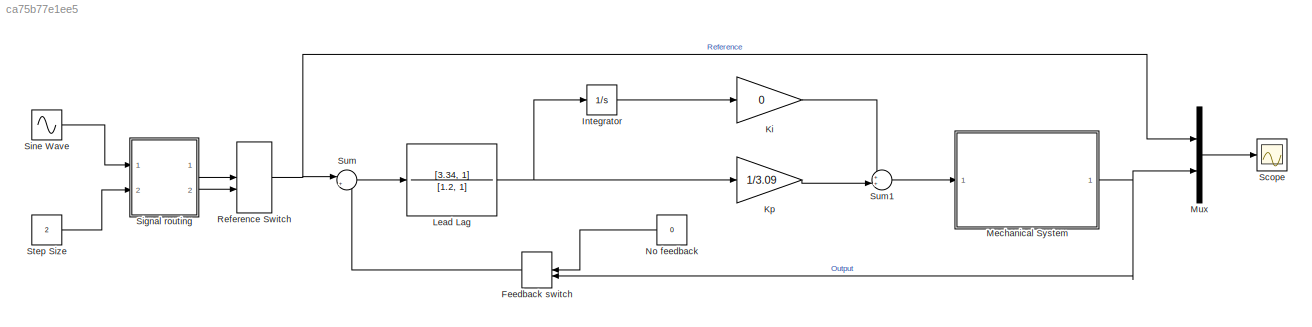
MODEL slx_ca75b77e1ee5
KIND model
CONFIG AbsTol = auto
CONFIG EnableMultiTasking = on
CONFIG FixedStep = 0.002
CONFIG MaxStep = auto
CONFIG MinStep = auto
CONFIG RelTol = 1e-3
CONFIG SampleTimeConstraint = Unconstrained
CONFIG Solver = ode1
CONFIG SolverName = ode1
CONFIG StartTime = 0.0
CONFIG StopTime = 20
BLOCK [ManualSwitch] Feedback switch
BLOCK [Integrator] Integrator
  Ports = [1, 1]
BLOCK [Gain] Ki
  Gain = 0
  OutDataTypeStr = Inherit: Inherit via internal rule
  ParamDataTypeStr = Inherit: Inherit via internal rule
  SaturateOnIntegerOverflow = off
BLOCK [Gain] Kp
  Gain = 1/3.09
  OutDataTypeStr = Inherit: Inherit via internal rule
  ParamDataTypeStr = Inherit: Inherit via internal rule
  SaturateOnIntegerOverflow = off
BLOCK [TransferFcn] Lead Lag
  Denominator = [1.2, 1]
  Numerator = [3.34, 1]
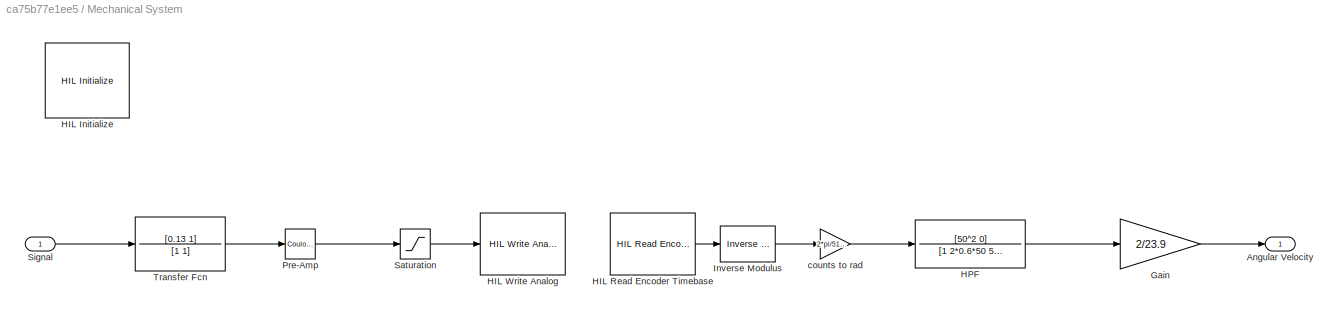
BLOCK [SubSystem] Mechanical System
  Ports = [1, 1]
  RequestExecContextInheritance = off
BLOCK [Outport] Mechanical System/Angular Velocity
  IconDisplay = Port number
BLOCK [Gain] Mechanical System/Gain
  Gain = 2/23.9
  OutDataTypeStr = Inherit: Inherit via internal rule
  ParamDataTypeStr = Inherit: Inherit via internal rule
  SaturateOnIntegerOverflow = off
BLOCK [Reference] Mechanical System/HIL Initialize  REF=quarc_library/Data Acquisition/Generic/Configuration/HIL Initialize
  AttributesFormatString = %<object_name> (%<board_type>-%<board_number>)
  Ports = []
  Priority = -99
  SourceBlock = quarc_library/Data Acquisition/Generic/Configuration/HIL Initialize
  SourceProductName = QUARC Targets
  SourceType = HIL Initialize
  UserDataPersistent = on
BLOCK [Reference] Mechanical System/HIL Read Encoder Timebase  REF=quarc_library/Data Acquisition/Generic/Timebases/HIL Read Encoder
Timebase
  AttributesFormatString = (%<object_name>)
  Ports = [0, 1]
  SourceBlock = quarc_library/Data Acquisition/Generic/Timebases/HIL Read Encoder\nTimebase
  SourceProductName = QUARC Targets
  SourceType = HIL Read Encoder Timebase
  UserDataPersistent = on
BLOCK [Reference] Mechanical System/HIL Write Analog  REF=quarc_library/Data Acquisition/Generic/Immediate I//O/HIL Write Analog
  AttributesFormatString = (%<object_name>)
  Ports = [1]
  SourceBlock = quarc_library/Data Acquisition/Generic/Immediate I//O/HIL Write Analog
  SourceProductName = QUARC Targets
  SourceType = HIL Write Analog
  UserDataPersistent = on
BLOCK [TransferFcn] Mechanical System/HPF
  Denominator = [1 2*0.6*50 50^2]
  Numerator = [50^2 0]
BLOCK [Reference] Mechanical System/Inverse Modulus  REF=quarc_library/Discontinuities/Inverse
Modulus
  Ports = [1, 1]
  SourceBlock = quarc_library/Discontinuities/Inverse\nModulus
  SourceProductName = QUARC Targets
  SourceType = Inverse Modulus
BLOCK [Reference] Mechanical System/Pre-Amp  REF=simulink/Discontinuities/Coulomb &
Viscous Friction
  Ports = [1, 1]
  SourceBlock = simulink/Discontinuities/Coulomb &\nViscous Friction
  SourceProductBaseCode = SL
  SourceProductName = Simulink
  SourceType = Coulombic and Viscous Friction
BLOCK [Saturate] Mechanical System/Saturation
  InputPortMap = u0
  LowerLimit = -10
  Ports = [1, 1]
  UpperLimit = 10
BLOCK [Inport] Mechanical System/Signal
  IconDisplay = Port number
BLOCK [TransferFcn] Mechanical System/Transfer Fcn
  Denominator = [1 1]
  Numerator = [0.13 1]
BLOCK [Gain] Mechanical System/counts to rad
  Gain = 2*pi/512/4
  OutDataTypeStr = Inherit: Inherit via internal rule
  ParamDataTypeStr = Inherit: Inherit via internal rule
  SaturateOnIntegerOverflow = off
BLOCK [Mux] Mux
  DisplayOption = bar
  Inputs = 2
  Ports = [2, 1]
BLOCK [Constant] No feedback
  Value = 0
BLOCK [ManualSwitch] Reference Switch
BLOCK [Scope] Scope
  Floating = off
  NumInputPorts = 1
  Ports = [1]
  ScopeSpecificationString = Simulink.scopes.TimeScopeBlockCfg('CurrentConfiguration', extmgr.ConfigurationSet(extmgr.Configuration('Core','General UI',true,'FigureColor',[0.501960784313725 0.501960784313725 0.501960784313725]),extmgr.Configuration('Core','Source UI',true),extmgr.Configuration('Sources','WiredSimulink',true,'DataLogging',true,'DataLoggingSaveFormat','Array','DataLoggingDecimation','1','DataLoggingDecimateData...<+2670ch>
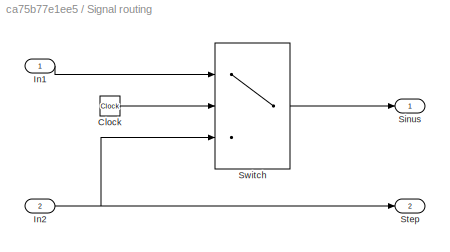
BLOCK [SubSystem] Signal routing
  Ports = [2, 2]
  RequestExecContextInheritance = off
BLOCK [Clock] Signal routing/Clock
BLOCK [Inport] Signal routing/In1
  IconDisplay = Port number
BLOCK [Inport] Signal routing/In2
  IconDisplay = Port number
  Port = 2
BLOCK [Outport] Signal routing/Sinus
  IconDisplay = Port number
BLOCK [Outport] Signal routing/Step
  IconDisplay = Port number
  Port = 2
BLOCK [Switch] Signal routing/Switch
  Criteria = u2 > Threshold
  InputSameDT = off
  SaturateOnIntegerOverflow = off
  Threshold = 2
BLOCK [Sin] Sine Wave
  Amplitude = 0.5
  Bias = 2
  Phase = -2*1
  Ports = [0, 1]
  SampleTime = 0
BLOCK [Constant] Step Size
  Value = 2
BLOCK [Sum] Sum
  IconShape = round
  InputSameDT = off
  Inputs = |+-
  OutDataTypeStr = Inherit: Inherit via internal rule
  Ports = [2, 1]
  SaturateOnIntegerOverflow = off
BLOCK [Sum] Sum1
  IconShape = round
  InputSameDT = off
  Inputs = ++|
  OutDataTypeStr = Inherit: Inherit via internal rule
  Ports = [2, 1]
  SaturateOnIntegerOverflow = off
LINE Feedback switch:1 -> Sum:2
LINE Integrator:1 -> Ki:1
LINE Ki:1 -> Sum1:1
LINE Kp:1 -> Sum1:2
NET Lead Lag:1 -> Integrator:1, Kp:1
LINE Mechanical System/Gain:1 -> Mechanical System/Angular Velocity:1
LINE Mechanical System/HIL Read Encoder Timebase:1 -> Mechanical System/Inverse Modulus:1
LINE Mechanical System/HPF:1 -> Mechanical System/Gain:1
LINE Mechanical System/Inverse Modulus:1 -> Mechanical System/counts to rad:1
LINE Mechanical System/Pre-Amp:1 -> Mechanical System/Saturation:1
LINE Mechanical System/Saturation:1 -> Mechanical System/HIL Write Analog:1
LINE Mechanical System/Signal:1 -> Mechanical System/Transfer Fcn:1
LINE Mechanical System/Transfer Fcn:1 -> Mechanical System/Pre-Amp:1
LINE Mechanical System/counts to rad:1 -> Mechanical System/HPF:1
NET Mechanical System:1 -> Feedback switch:2, Mux:2
LINE Mux:1 -> Scope:1
LINE No feedback:1 -> Feedback switch:1
NET Reference Switch:1 -> Mux:1, Sum:1
LINE Signal routing/Clock:1 -> Signal routing/Switch:2
LINE Signal routing/In1:1 -> Signal routing/Switch:1
NET Signal routing/In2:1 -> Signal routing/Step:1, Signal routing/Switch:3
LINE Signal routing/Switch:1 -> Signal routing/Sinus:1
LINE Signal routing:1 -> Reference Switch:1
LINE Signal routing:2 -> Reference Switch:2
LINE Sine Wave:1 -> Signal routing:1
LINE Step Size:1 -> Signal routing:2
LINE Sum1:1 -> Mechanical System:1
LINE Sum:1 -> Lead Lag:1
note: NET lines group one-source signal fan-out (src -> all destinations, sorted); 1:1 wires keep LINE
